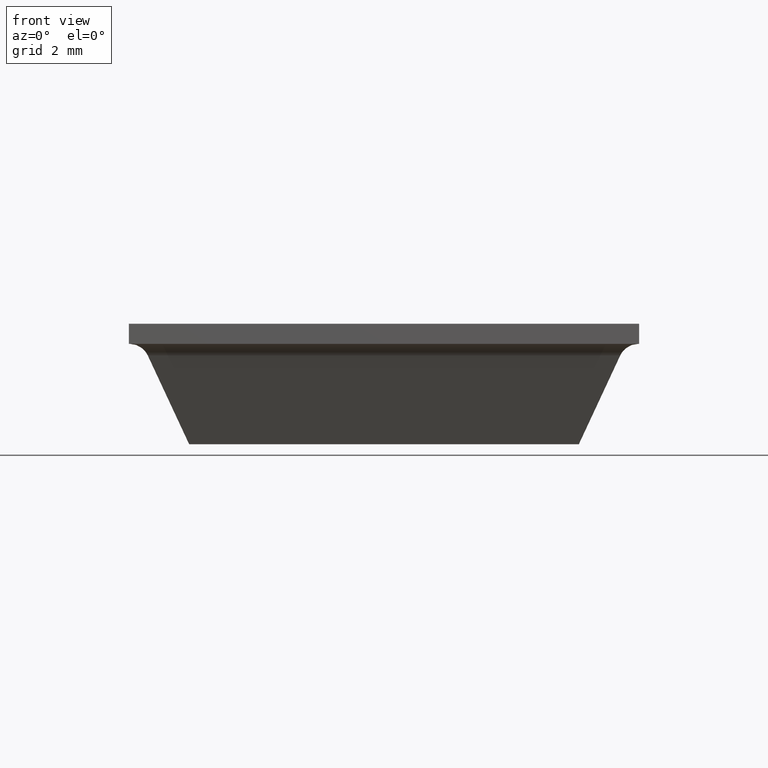
[diagram: clean part render]
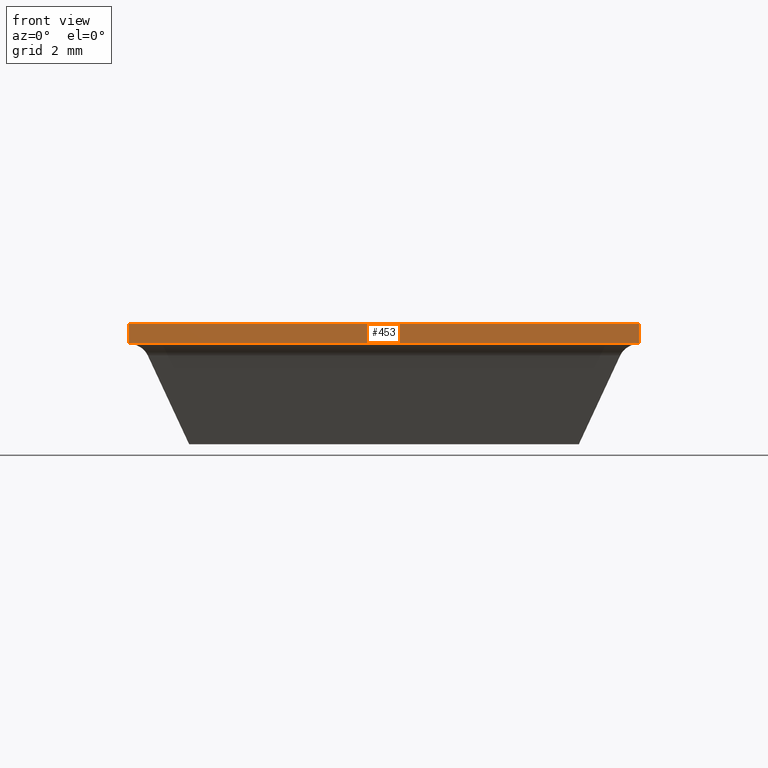
[diagram: same view with one face highlighted and labeled with its STEP entity id]
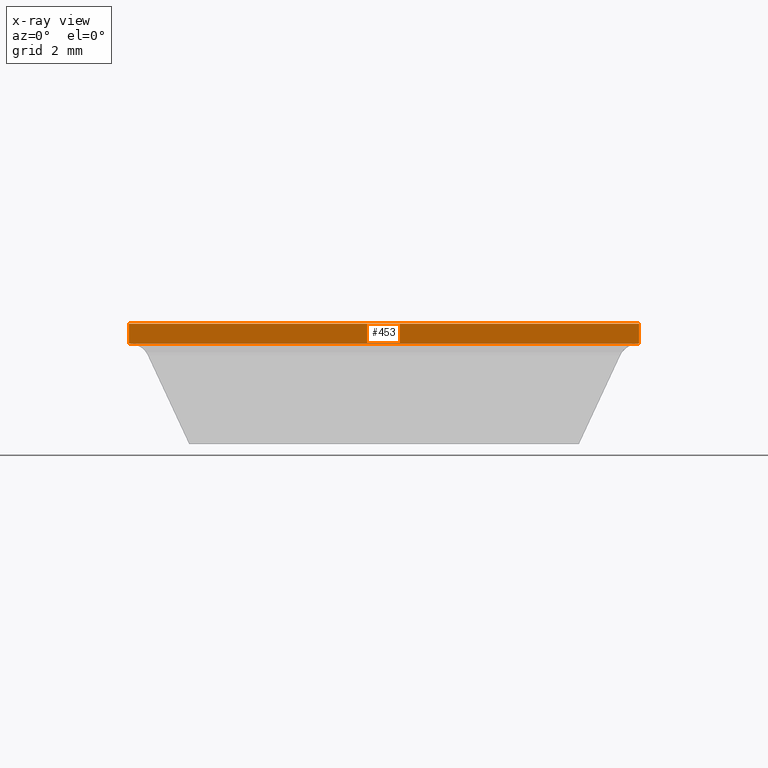
[diagram: x-ray of the same camera — body ghosted, the highlighted face saturated]
A machine part, front view. The second image highlights one B-rep face of the part: STEP entity #453.
The next image is the same camera in x-ray: the body ghosted, the highlighted face saturated — about 0% of this face is hidden behind the body in this view.
In plain terms, the highlighted face is a freeform B-spline surface patch.
Its self-contained STEP definition (entity closure, byte-faithful):
#319=CARTESIAN_POINT('',(6.350000000000000,-6.350000000000000,2.500000000000000));
#320=VERTEX_POINT('',#319);
#326=CARTESIAN_POINT('',(-6.350000000000000,-6.350000000000000,2.500000000000000));
#327=VERTEX_POINT('',#326);
#328=CARTESIAN_POINT('',(-6.350000000000000,-6.350000000000000,2.500000000000000));
#329=CARTESIAN_POINT('',(6.350000000000000,-6.350000000000000,2.500000000000000));
#330=QUASI_UNIFORM_CURVE('',1,(#328,#329),.UNSPECIFIED.,.F.,.U.);
#331=EDGE_CURVE('',#327,#320,#330,.T.);
#373=CARTESIAN_POINT('',(6.350000000000000,-6.350000000000000,3.0));
#374=VERTEX_POINT('',#373);
#387=CARTESIAN_POINT('',(-6.350000000000000,-6.350000000000000,3.0));
#388=VERTEX_POINT('',#387);
#394=CARTESIAN_POINT('',(6.350000000000000,-6.350000000000000,3.0));
#395=CARTESIAN_POINT('',(-6.350000000000000,-6.350000000000000,3.0));
#396=QUASI_UNIFORM_CURVE('',1,(#394,#395),.UNSPECIFIED.,.F.,.U.);
#397=EDGE_CURVE('',#374,#388,#396,.T.);
#428=CARTESIAN_POINT('',(-6.350000000000000,-6.350000000000000,3.0));
#429=CARTESIAN_POINT('',(-6.350000000000000,-6.350000000000000,2.500000000000000));
#430=QUASI_UNIFORM_CURVE('',1,(#428,#429),.UNSPECIFIED.,.F.,.U.);
#431=EDGE_CURVE('',#388,#327,#430,.T.);
#438=CARTESIAN_POINT('',(-6.984364856166422,-6.350000000000000,3.024974999030904));
#439=CARTESIAN_POINT('',(-6.984364856166422,-6.350000000000000,2.475024987558052));
#440=CARTESIAN_POINT('',(6.984365310353814,-6.350000000000000,3.024974999030904));
#441=CARTESIAN_POINT('',(6.984365310353814,-6.350000000000000,2.475024987558052));
#442=B_SPLINE_SURFACE_WITH_KNOTS('',1,1,((#438,#440),(#439,#441)),.UNSPECIFIED.,.F.,.F.,.U.,(2,2),(2,2),(0.041708334948495,0.958291687403247),(0.0,13.968730166520240),.UNSPECIFIED.);
#443=ORIENTED_EDGE('',*,*,#331,.T.);
#444=CARTESIAN_POINT('',(6.350000000000000,-6.350000000000000,3.0));
#445=CARTESIAN_POINT('',(6.350000000000000,-6.350000000000000,2.500000000000000));
#446=QUASI_UNIFORM_CURVE('',1,(#444,#445),.UNSPECIFIED.,.F.,.U.);
#447=EDGE_CURVE('',#374,#320,#446,.T.);
#448=ORIENTED_EDGE('',*,*,#447,.F.);
#449=ORIENTED_EDGE('',*,*,#397,.T.);
#450=ORIENTED_EDGE('',*,*,#431,.T.);
#451=EDGE_LOOP('',(#443,#448,#449,#450));
#452=FACE_OUTER_BOUND('',#451,.T.);
#453=ADVANCED_FACE('',(#452),#442,.T.);